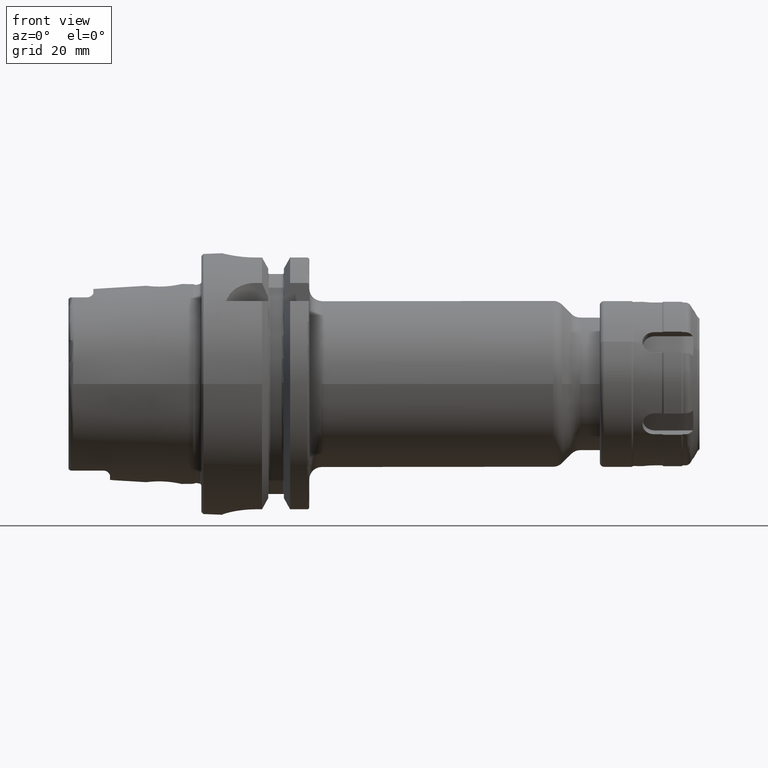
[diagram: clean part render]
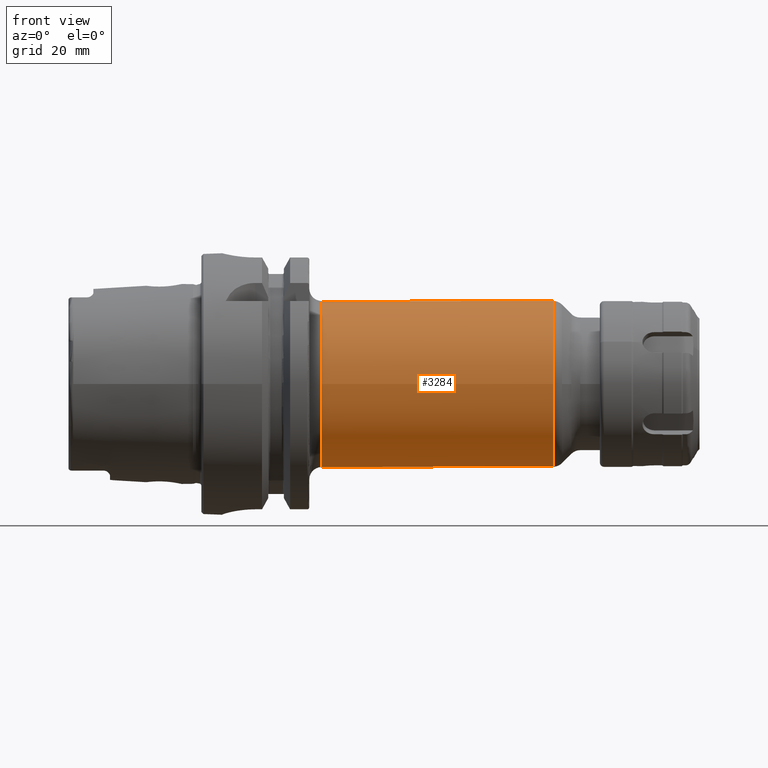
[diagram: same view with one face highlighted and labeled with its STEP entity id]
A machine part, front view. The second image highlights one B-rep face of the part: STEP entity #3284.
In plain terms, the highlighted cylindrical surface (bore or boss wall) has radius 20 mm, axis along (1, 0, 0).
Its self-contained STEP definition (entity closure, byte-faithful):
#261=CYLINDRICAL_SURFACE('',#3569,20.);
#323=FACE_OUTER_BOUND('',#517,.T.);
#517=EDGE_LOOP('',(#2244,#2245,#2246,#2247,#2248,#2249));
#718=LINE('',#5051,#924);
#924=VECTOR('',#4033,20.);
#1147=CIRCLE('',#3567,20.);
#1148=CIRCLE('',#3568,20.);
#1149=CIRCLE('',#3570,20.);
#1150=CIRCLE('',#3571,20.);
#1342=VERTEX_POINT('',#5044);
#1343=VERTEX_POINT('',#5046);
#1344=VERTEX_POINT('',#5050);
#1345=VERTEX_POINT('',#5052);
#1693=EDGE_CURVE('',#1342,#1343,#1147,.T.);
#1694=EDGE_CURVE('',#1343,#1342,#1148,.T.);
#1695=EDGE_CURVE('',#1343,#1344,#718,.T.);
#1696=EDGE_CURVE('',#1345,#1344,#1149,.T.);
#1697=EDGE_CURVE('',#1344,#1345,#1150,.T.);
#2244=ORIENTED_EDGE('',*,*,#1694,.F.);
#2245=ORIENTED_EDGE('',*,*,#1695,.T.);
#2246=ORIENTED_EDGE('',*,*,#1696,.F.);
#2247=ORIENTED_EDGE('',*,*,#1697,.F.);
#2248=ORIENTED_EDGE('',*,*,#1695,.F.);
#2249=ORIENTED_EDGE('',*,*,#1693,.F.);
#3284=ADVANCED_FACE('',(#323),#261,.T.);
#3567=AXIS2_PLACEMENT_3D('',#5047,#4027,#4028);
#3568=AXIS2_PLACEMENT_3D('',#5048,#4029,#4030);
#3569=AXIS2_PLACEMENT_3D('',#5049,#4031,#4032);
#3570=AXIS2_PLACEMENT_3D('',#5053,#4034,#4035);
#3571=AXIS2_PLACEMENT_3D('',#5054,#4036,#4037);
#4027=DIRECTION('center_axis',(1.,0.,0.));
#4028=DIRECTION('ref_axis',(0.,-1.,1.83697019872103E-16));
#4029=DIRECTION('center_axis',(1.,0.,0.));
#4030=DIRECTION('ref_axis',(0.,-1.,1.83697019872103E-16));
#4031=DIRECTION('center_axis',(1.,0.,0.));
#4032=DIRECTION('ref_axis',(0.,1.,0.));
#4033=DIRECTION('',(-1.,0.,0.));
#4034=DIRECTION('center_axis',(-1.,0.,0.));
#4035=DIRECTION('ref_axis',(0.,-1.,-1.22464679914735E-16));
#4036=DIRECTION('center_axis',(-1.,0.,0.));
#4037=DIRECTION('ref_axis',(0.,-1.,-1.22464679914735E-16));
#5044=CARTESIAN_POINT('',(84.7573593128807,-2.44929359829471E-15,20.));
#5046=CARTESIAN_POINT('',(84.7573593128807,-20.,-2.44929359829471E-15));
#5047=CARTESIAN_POINT('Origin',(84.7573593128807,0.,0.));
#5048=CARTESIAN_POINT('Origin',(84.7573593128807,0.,0.));
#5049=CARTESIAN_POINT('Origin',(56.,0.,0.));
#5050=CARTESIAN_POINT('',(29.,-20.,-2.44929359829471E-15));
#5051=CARTESIAN_POINT('',(56.,-20.,-2.44929359829471E-15));
#5052=CARTESIAN_POINT('',(29.,-2.44929359829471E-15,-20.));
#5053=CARTESIAN_POINT('Origin',(29.,0.,0.));
#5054=CARTESIAN_POINT('Origin',(29.,0.,0.));